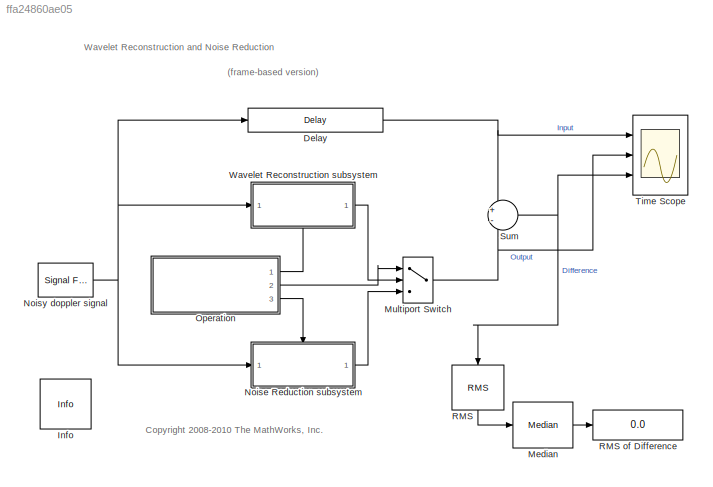
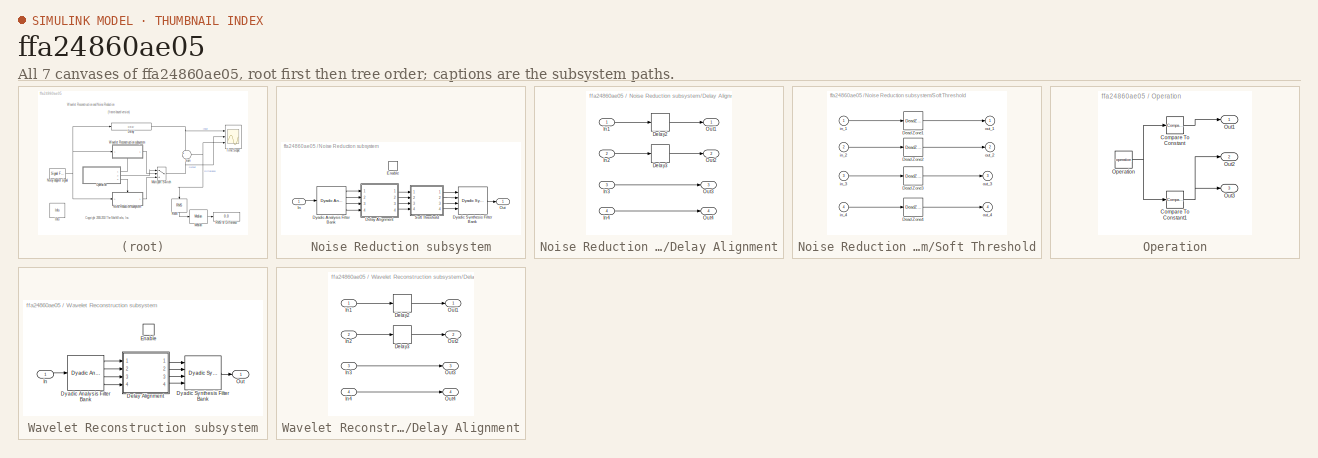
[diagram: thumbnail index - all 7 canvases of the model, root first then tree order]
MODEL slx_ffa24860ae05
KIND model
CONFIG AbsTol = auto
CONFIG EnableMultiTasking = on
CONFIG FixedStep = auto
CONFIG MaxStep = auto
CONFIG MinStep = auto
CONFIG RelTol = 1e-3
CONFIG SampleTimeConstraint = Unconstrained
CONFIG Solver = FixedStepDiscrete
CONFIG SolverName = FixedStepDiscrete
CONFIG StartTime = 0.0
CONFIG StopTime = 1024
WORKSPACE source: external: MAT-File  (data not in archive)
BLOCK [Delay] Delay
  DelayLength = 7*(length(lod)-1)
  InputPortMap = u0
  InputProcessing = Columns as channels (frame based)
  Ports = [1, 1]
BLOCK [Reference] Info  REF=dspmisc/Info
  Ports = []
  SourceBlock = dspmisc/Info
  SourceType = Info
BLOCK [Reference] Median  REF=dspstat3/Median
  Ports = [1, 1]
  SourceBlock = dspstat3/Median
  SourceType = Median
BLOCK [MultiPortSwitch] Multiport Switch
  DataPortOrder = Zero-based contiguous
  InputSameDT = off
  Inputs = 2
  Ports = [3, 1]
  SaturateOnIntegerOverflow = off
  zeroidx = on
BLOCK [SubSystem] Noise Reduction subsystem
  Ports = [1, 1, 1]
  RequestExecContextInheritance = off
  TreatAsAtomicUnit = on
  Variant = off
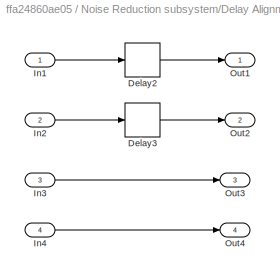
BLOCK [SubSystem] Noise Reduction subsystem/Delay Alignment
  Ports = [4, 4]
  RequestExecContextInheritance = off
  Variant = off
BLOCK [Delay] Noise Reduction subsystem/Delay Alignment/Delay2
  DelayLength = 3*(length(lod)-1)
  InputPortMap = u0
  InputProcessing = Columns as channels (frame based)
  Ports = [1, 1]
BLOCK [Delay] Noise Reduction subsystem/Delay Alignment/Delay3
  DelayLength = length(lod) - 1
  InputPortMap = u0
  InputProcessing = Columns as channels (frame based)
  Ports = [1, 1]
BLOCK [Inport] Noise Reduction subsystem/Delay Alignment/In1
  IconDisplay = Port number
BLOCK [Inport] Noise Reduction subsystem/Delay Alignment/In2
  IconDisplay = Port number
  Port = 2
BLOCK [Inport] Noise Reduction subsystem/Delay Alignment/In3
  IconDisplay = Port number
  Port = 3
BLOCK [Inport] Noise Reduction subsystem/Delay Alignment/In4
  IconDisplay = Port number
  Port = 4
BLOCK [Outport] Noise Reduction subsystem/Delay Alignment/Out1
  IconDisplay = Port number
BLOCK [Outport] Noise Reduction subsystem/Delay Alignment/Out2
  IconDisplay = Port number
  Port = 2
BLOCK [Outport] Noise Reduction subsystem/Delay Alignment/Out3
  IconDisplay = Port number
  Port = 3
BLOCK [Outport] Noise Reduction subsystem/Delay Alignment/Out4
  IconDisplay = Port number
  Port = 4
BLOCK [Reference] Noise Reduction subsystem/Dyadic Analysis Filter Bank  REF=dspmlti4/Dyadic Analysis
Filter Bank
  Ports = [1, 4]
  SourceBlock = dspmlti4/Dyadic Analysis\nFilter Bank
  SourceType = Dyadic Analysis Filter Bank
BLOCK [Reference] Noise Reduction subsystem/Dyadic Synthesis Filter Bank  REF=dspmlti4/Dyadic Synthesis
Filter Bank
  Ports = [4, 1]
  SourceBlock = dspmlti4/Dyadic Synthesis\nFilter Bank
  SourceType = Dyadic Synthesis Filter Bank
BLOCK [EnablePort] Noise Reduction subsystem/Enable
  Ports = []
BLOCK [Inport] Noise Reduction subsystem/In
  IconDisplay = Port number
BLOCK [Outport] Noise Reduction subsystem/Out
  IconDisplay = Port number
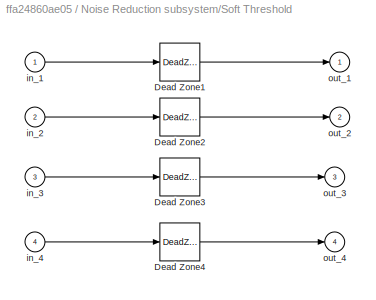
BLOCK [SubSystem] Noise Reduction subsystem/Soft Threshold
  Ports = [4, 4]
  RequestExecContextInheritance = off
  ShowPortLabels = none
  Variant = off
BLOCK [DeadZone] Noise Reduction subsystem/Soft Threshold/Dead Zone1
  LowerValue = -st(1)
  UpperValue = st(1)
  ZeroCross = off
BLOCK [DeadZone] Noise Reduction subsystem/Soft Threshold/Dead Zone2
  LowerValue = -st(2)
  UpperValue = st(2)
  ZeroCross = off
BLOCK [DeadZone] Noise Reduction subsystem/Soft Threshold/Dead Zone3
  LowerValue = -st(3)
  UpperValue = st(3)
  ZeroCross = off
BLOCK [DeadZone] Noise Reduction subsystem/Soft Threshold/Dead Zone4
  LowerValue = -st(4)
  UpperValue = st(4)
  ZeroCross = off
BLOCK [Inport] Noise Reduction subsystem/Soft Threshold/in_1
  IconDisplay = Port number
BLOCK [Inport] Noise Reduction subsystem/Soft Threshold/in_2
  IconDisplay = Port number
  Port = 2
BLOCK [Inport] Noise Reduction subsystem/Soft Threshold/in_3
  IconDisplay = Port number
  Port = 3
BLOCK [Inport] Noise Reduction subsystem/Soft Threshold/in_4
  IconDisplay = Port number
  Port = 4
BLOCK [Outport] Noise Reduction subsystem/Soft Threshold/out_1
  IconDisplay = Port number
BLOCK [Outport] Noise Reduction subsystem/Soft Threshold/out_2
  IconDisplay = Port number
  Port = 2
BLOCK [Outport] Noise Reduction subsystem/Soft Threshold/out_3
  IconDisplay = Port number
  Port = 3
BLOCK [Outport] Noise Reduction subsystem/Soft Threshold/out_4
  IconDisplay = Port number
  Port = 4
BLOCK [Reference] Noisy doppler signal  REF=dspsrcs4/Signal From
Workspace
  Ports = [0, 1]
  SourceBlock = dspsrcs4/Signal From\nWorkspace
  SourceType = Signal From Workspace
BLOCK [SubSystem] Operation
  Ports = [0, 3]
  RequestExecContextInheritance = off
  Variant = off
BLOCK [Reference] Operation/Compare To Constant  REF=simulink/Logic and Bit
Operations/Compare
To Constant
  Ports = [1, 1]
  SourceBlock = simulink/Logic and Bit\nOperations/Compare\nTo Constant
  SourceType = Compare To Constant
BLOCK [Reference] Operation/Compare To Constant1  REF=simulink/Logic and Bit
Operations/Compare
To Constant
  Ports = [1, 1]
  SourceBlock = simulink/Logic and Bit\nOperations/Compare\nTo Constant
  SourceType = Compare To Constant
BLOCK [Constant] Operation/Operation
  Value = operation
BLOCK [Outport] Operation/Out1
  IconDisplay = Port number
BLOCK [Outport] Operation/Out2
  IconDisplay = Port number
  Port = 2
BLOCK [Outport] Operation/Out3
  IconDisplay = Port number
  Port = 3
BLOCK [Reference] RMS  REF=dspstat3/RMS
  Ports = [1, 1]
  SourceBlock = dspstat3/RMS
  SourceType = RMS
  UserDataPersistent = on
BLOCK [Display] RMS of Difference
  Decimation = 1
  Ports = [1]
BLOCK [Sum] Sum
  IconShape = round
  Inputs = +-
  Ports = [2, 1]
BLOCK [Scope] Time Scope
  DefaultConfigurationName = spbscopes.TimeScopeBlockCfg
  NumInputPorts = 3
  Ports = [3]
  ScopeSpecificationString = spbscopes.TimeScopeBlockCfg('CurrentConfiguration', extmgr.ConfigurationSet(extmgr.Configuration('Core','General UI',true,'ShowStatusbar',false),extmgr.Configuration('Core','Source UI',true),extmgr.Configuration('Sources','WiredSimulink',true,'PointsPerSignal',50000),extmgr.Configuration('Visuals','Time Domain',true,'DisplayLayoutDimensions',[3 1],'DisplayPropertyDefaults',struct('YLabelReal','Amp...<+2535ch>
BLOCK [SubSystem] Wavelet Reconstruction subsystem
  Ports = [1, 1, 1]
  RequestExecContextInheritance = off
  TreatAsAtomicUnit = on
  Variant = off
BLOCK [SubSystem] Wavelet Reconstruction subsystem/Delay Alignment
  Ports = [4, 4]
  RequestExecContextInheritance = off
  Variant = off
BLOCK [Delay] Wavelet Reconstruction subsystem/Delay Alignment/Delay2
  DelayLength = 3*(length(lod)-1)
  InputPortMap = u0
  InputProcessing = Columns as channels (frame based)
  Ports = [1, 1]
BLOCK [Delay] Wavelet Reconstruction subsystem/Delay Alignment/Delay3
  DelayLength = length(lod) - 1
  InputPortMap = u0
  InputProcessing = Columns as channels (frame based)
  Ports = [1, 1]
BLOCK [Inport] Wavelet Reconstruction subsystem/Delay Alignment/In1
  IconDisplay = Port number
BLOCK [Inport] Wavelet Reconstruction subsystem/Delay Alignment/In2
  IconDisplay = Port number
  Port = 2
BLOCK [Inport] Wavelet Reconstruction subsystem/Delay Alignment/In3
  IconDisplay = Port number
  Port = 3
BLOCK [Inport] Wavelet Reconstruction subsystem/Delay Alignment/In4
  IconDisplay = Port number
  Port = 4
BLOCK [Outport] Wavelet Reconstruction subsystem/Delay Alignment/Out1
  IconDisplay = Port number
BLOCK [Outport] Wavelet Reconstruction subsystem/Delay Alignment/Out2
  IconDisplay = Port number
  Port = 2
BLOCK [Outport] Wavelet Reconstruction subsystem/Delay Alignment/Out3
  IconDisplay = Port number
  Port = 3
BLOCK [Outport] Wavelet Reconstruction subsystem/Delay Alignment/Out4
  IconDisplay = Port number
  Port = 4
BLOCK [Reference] Wavelet Reconstruction subsystem/Dyadic Analysis Filter Bank  REF=dspmlti4/Dyadic Analysis
Filter Bank
  Ports = [1, 4]
  SourceBlock = dspmlti4/Dyadic Analysis\nFilter Bank
  SourceType = Dyadic Analysis Filter Bank
BLOCK [Reference] Wavelet Reconstruction subsystem/Dyadic Synthesis Filter Bank  REF=dspmlti4/Dyadic Synthesis
Filter Bank
  Ports = [4, 1]
  SourceBlock = dspmlti4/Dyadic Synthesis\nFilter Bank
  SourceType = Dyadic Synthesis Filter Bank
BLOCK [EnablePort] Wavelet Reconstruction subsystem/Enable
  Ports = []
BLOCK [Inport] Wavelet Reconstruction subsystem/In
  IconDisplay = Port number
BLOCK [Outport] Wavelet Reconstruction subsystem/Out
  IconDisplay = Port number
ANNOTATION (root): (frame-based version)
ANNOTATION (root): <copyright redacted>
ANNOTATION (root): Wavelet Reconstruction and Noise Reduction
NET Delay:1 -> Sum:1, Time Scope:1
LINE Median:1 -> RMS of Difference:1
NET Multiport Switch:1 -> Sum:2, Time Scope:2
LINE Noise Reduction subsystem/Delay Alignment/Delay2:1 -> Noise Reduction subsystem/Delay Alignment/Out1:1
LINE Noise Reduction subsystem/Delay Alignment/Delay3:1 -> Noise Reduction subsystem/Delay Alignment/Out2:1
LINE Noise Reduction subsystem/Delay Alignment/In1:1 -> Noise Reduction subsystem/Delay Alignment/Delay2:1
LINE Noise Reduction subsystem/Delay Alignment/In2:1 -> Noise Reduction subsystem/Delay Alignment/Delay3:1
LINE Noise Reduction subsystem/Delay Alignment/In3:1 -> Noise Reduction subsystem/Delay Alignment/Out3:1
LINE Noise Reduction subsystem/Delay Alignment/In4:1 -> Noise Reduction subsystem/Delay Alignment/Out4:1
LINE Noise Reduction subsystem/Delay Alignment:1 -> Noise Reduction subsystem/Soft Threshold:1
LINE Noise Reduction subsystem/Delay Alignment:2 -> Noise Reduction subsystem/Soft Threshold:2
LINE Noise Reduction subsystem/Delay Alignment:3 -> Noise Reduction subsystem/Soft Threshold:3
LINE Noise Reduction subsystem/Delay Alignment:4 -> Noise Reduction subsystem/Soft Threshold:4
LINE Noise Reduction subsystem/Dyadic Analysis Filter Bank:1 -> Noise Reduction subsystem/Delay Alignment:1
LINE Noise Reduction subsystem/Dyadic Analysis Filter Bank:2 -> Noise Reduction subsystem/Delay Alignment:2
LINE Noise Reduction subsystem/Dyadic Analysis Filter Bank:3 -> Noise Reduction subsystem/Delay Alignment:3
LINE Noise Reduction subsystem/Dyadic Analysis Filter Bank:4 -> Noise Reduction subsystem/Delay Alignment:4
LINE Noise Reduction subsystem/Dyadic Synthesis Filter Bank:1 -> Noise Reduction subsystem/Out:1
LINE Noise Reduction subsystem/In:1 -> Noise Reduction subsystem/Dyadic Analysis Filter Bank:1
LINE Noise Reduction subsystem/Soft Threshold/Dead Zone1:1 -> Noise Reduction subsystem/Soft Threshold/out_1:1
LINE Noise Reduction subsystem/Soft Threshold/Dead Zone2:1 -> Noise Reduction subsystem/Soft Threshold/out_2:1
LINE Noise Reduction subsystem/Soft Threshold/Dead Zone3:1 -> Noise Reduction subsystem/Soft Threshold/out_3:1
LINE Noise Reduction subsystem/Soft Threshold/Dead Zone4:1 -> Noise Reduction subsystem/Soft Threshold/out_4:1
LINE Noise Reduction subsystem/Soft Threshold/in_1:1 -> Noise Reduction subsystem/Soft Threshold/Dead Zone1:1
LINE Noise Reduction subsystem/Soft Threshold/in_2:1 -> Noise Reduction subsystem/Soft Threshold/Dead Zone2:1
LINE Noise Reduction subsystem/Soft Threshold/in_3:1 -> Noise Reduction subsystem/Soft Threshold/Dead Zone3:1
LINE Noise Reduction subsystem/Soft Threshold/in_4:1 -> Noise Reduction subsystem/Soft Threshold/Dead Zone4:1
LINE Noise Reduction subsystem/Soft Threshold:1 -> Noise Reduction subsystem/Dyadic Synthesis Filter Bank:1
LINE Noise Reduction subsystem/Soft Threshold:2 -> Noise Reduction subsystem/Dyadic Synthesis Filter Bank:2
LINE Noise Reduction subsystem/Soft Threshold:3 -> Noise Reduction subsystem/Dyadic Synthesis Filter Bank:3
LINE Noise Reduction subsystem/Soft Threshold:4 -> Noise Reduction subsystem/Dyadic Synthesis Filter Bank:4
LINE Noise Reduction subsystem:1 -> Multiport Switch:3
NET Noisy doppler signal:1 -> Delay:1, Noise Reduction subsystem:1, Wavelet Reconstruction subsystem:1
NET Operation/Compare To Constant1:1 -> Operation/Out2:1, Operation/Out3:1
LINE Operation/Compare To Constant:1 -> Operation/Out1:1
NET Operation/Operation:1 -> Operation/Compare To Constant1:1, Operation/Compare To Constant:1
LINE Operation:1 -> Wavelet Reconstruction subsystem:enable
LINE Operation:2 -> Multiport Switch:1
LINE Operation:3 -> Noise Reduction subsystem:enable
LINE RMS:1 -> Median:1
NET Sum:1 -> RMS:1, Time Scope:3
LINE Wavelet Reconstruction subsystem/Delay Alignment/Delay2:1 -> Wavelet Reconstruction subsystem/Delay Alignment/Out1:1
LINE Wavelet Reconstruction subsystem/Delay Alignment/Delay3:1 -> Wavelet Reconstruction subsystem/Delay Alignment/Out2:1
LINE Wavelet Reconstruction subsystem/Delay Alignment/In1:1 -> Wavelet Reconstruction subsystem/Delay Alignment/Delay2:1
LINE Wavelet Reconstruction subsystem/Delay Alignment/In2:1 -> Wavelet Reconstruction subsystem/Delay Alignment/Delay3:1
LINE Wavelet Reconstruction subsystem/Delay Alignment/In3:1 -> Wavelet Reconstruction subsystem/Delay Alignment/Out3:1
LINE Wavelet Reconstruction subsystem/Delay Alignment/In4:1 -> Wavelet Reconstruction subsystem/Delay Alignment/Out4:1
LINE Wavelet Reconstruction subsystem/Delay Alignment:1 -> Wavelet Reconstruction subsystem/Dyadic Synthesis Filter Bank:1
LINE Wavelet Reconstruction subsystem/Delay Alignment:2 -> Wavelet Reconstruction subsystem/Dyadic Synthesis Filter Bank:2
LINE Wavelet Reconstruction subsystem/Delay Alignment:3 -> Wavelet Reconstruction subsystem/Dyadic Synthesis Filter Bank:3
LINE Wavelet Reconstruction subsystem/Delay Alignment:4 -> Wavelet Reconstruction subsystem/Dyadic Synthesis Filter Bank:4
LINE Wavelet Reconstruction subsystem/Dyadic Analysis Filter Bank:1 -> Wavelet Reconstruction subsystem/Delay Alignment:1
LINE Wavelet Reconstruction subsystem/Dyadic Analysis Filter Bank:2 -> Wavelet Reconstruction subsystem/Delay Alignment:2
LINE Wavelet Reconstruction subsystem/Dyadic Analysis Filter Bank:3 -> Wavelet Reconstruction subsystem/Delay Alignment:3
LINE Wavelet Reconstruction subsystem/Dyadic Analysis Filter Bank:4 -> Wavelet Reconstruction subsystem/Delay Alignment:4
LINE Wavelet Reconstruction subsystem/Dyadic Synthesis Filter Bank:1 -> Wavelet Reconstruction subsystem/Out:1
LINE Wavelet Reconstruction subsystem/In:1 -> Wavelet Reconstruction subsystem/Dyadic Analysis Filter Bank:1
LINE Wavelet Reconstruction subsystem:1 -> Multiport Switch:2
note: NET lines group one-source signal fan-out (src -> all destinations, sorted); 1:1 wires keep LINE
